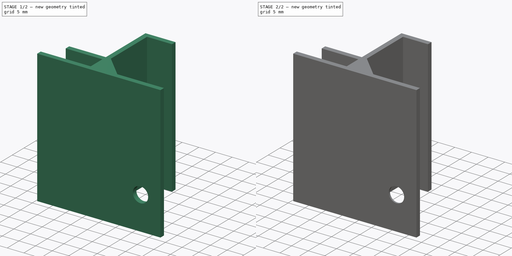
[diagram: build sequence overview — one tinted view per stage of 2, left to right]
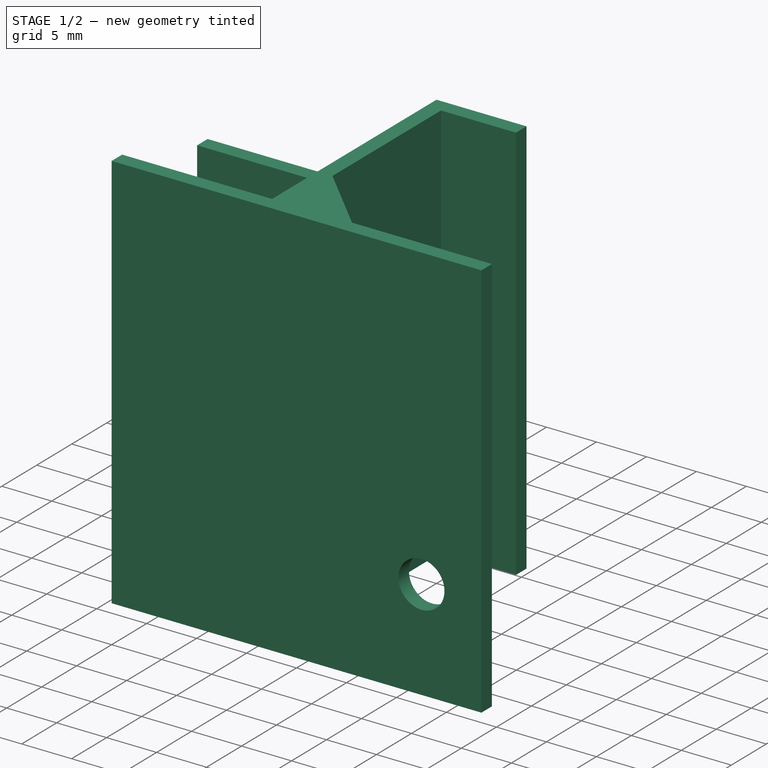
[diagram: stage 1 of 2 — iso view after this stage's code; geometry added in this stage tinted green]
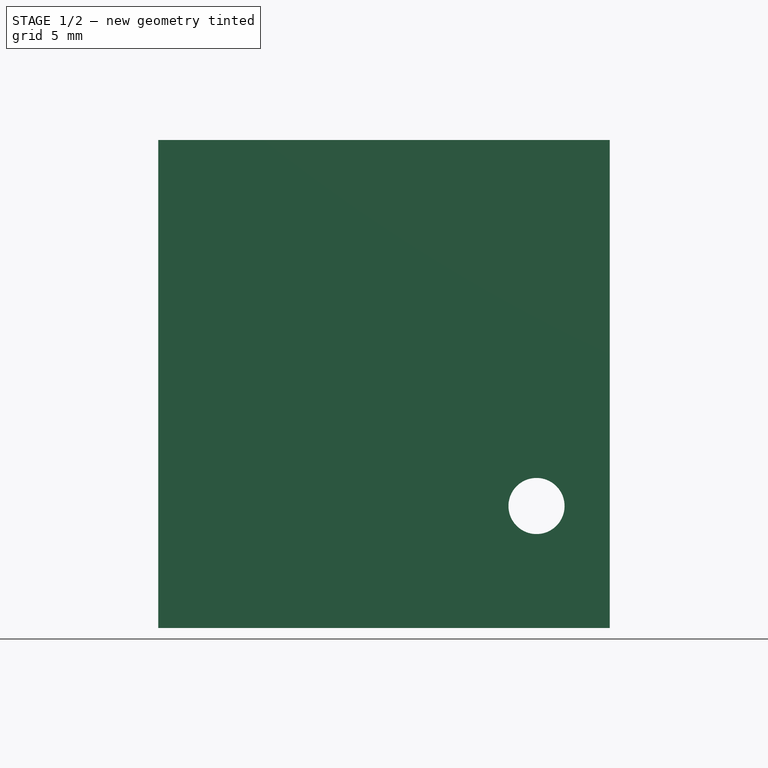
[diagram: stage 1 of 2 — front view after this stage's code; geometry added in this stage tinted green]
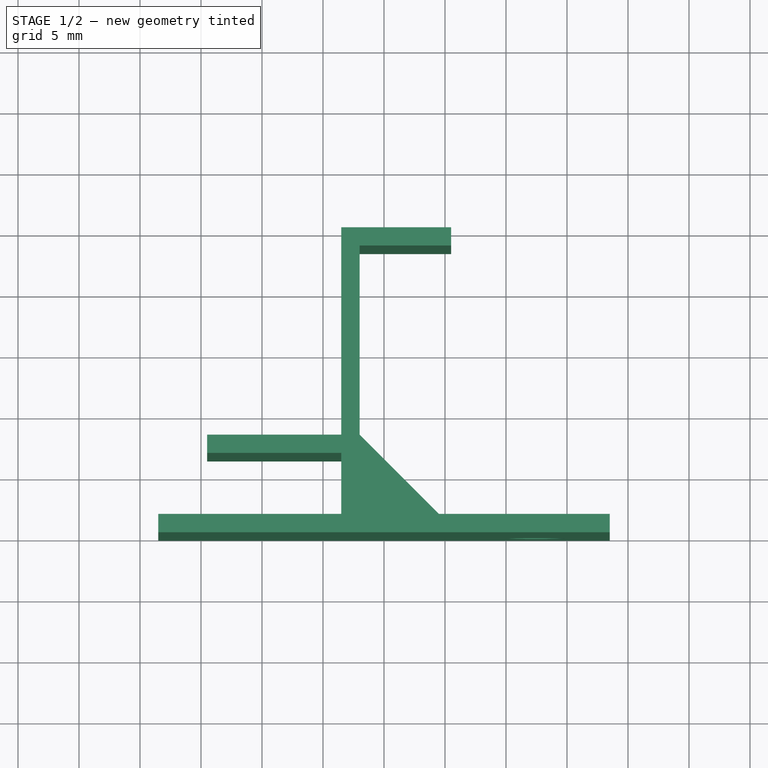
[diagram: stage 1 of 2 — top view after this stage's code; geometry added in this stage tinted green]
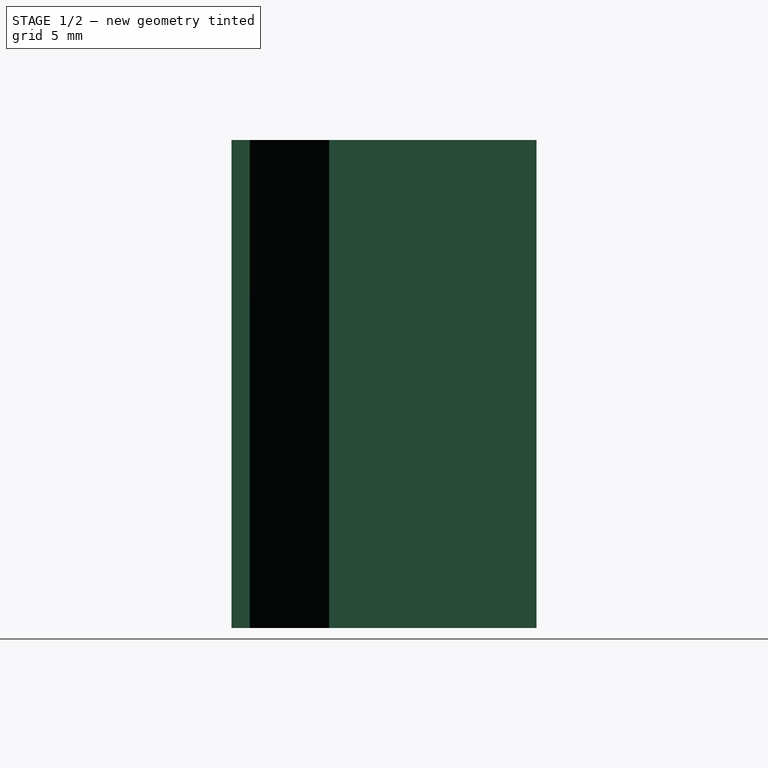
[diagram: stage 1 of 2 — right view after this stage's code; geometry added in this stage tinted green]
FCSTD DOCUMENT  (FreeCAD 0.18.4R)
Label: DoorTopGlassHolder
License: All rights reserved
LicenseURL: http://en.wikipedia.org/wiki/All_rights_reserved
objects: Sketcher::SketchObject×2, PartDesign::Pad×1, PartDesign::Pocket×1, PartDesign::Chamfer×1, PartDesign::Body×1
note: 8 computed .brp shape members not serialized (recipe doc carries the construction recipe); baked Part::Feature solids carry a one-line shape summary decoded from their .brp

FEATURE [Sketcher::SketchObject] Sketch
  MapMode = 5
  Support = -> [XY_Plane]
  sketch-geometry (20):
    g0: LineSegment StartX=-18.5 StartY=0 StartZ=0 EndX=18.5 EndY=0 EndZ=0
    g1: LineSegment StartX=18.5 StartY=0 StartZ=0 EndX=18.5 EndY=1.5 EndZ=0
    g2: LineSegment StartX=18.5 StartY=1.5 StartZ=0 EndX=4.5 EndY=1.5 EndZ=0
    g3: LineSegment StartX=-2 StartY=8 StartZ=0 EndX=-2 EndY=23.5 EndZ=0
    g4: LineSegment StartX=-2 StartY=23.5 StartZ=0 EndX=5.5 EndY=23.5 EndZ=0
    g5: LineSegment StartX=5.5 StartY=23.5 StartZ=0 EndX=5.5 EndY=25 EndZ=0
    g6: LineSegment StartX=5.5 StartY=25 StartZ=0 EndX=-3.5 EndY=25 EndZ=0
    g7: LineSegment StartX=-3.5 StartY=25 StartZ=0 EndX=-3.5 EndY=8 EndZ=0
    g8: LineSegment StartX=-3.5 StartY=8 StartZ=0 EndX=-14.5 EndY=8 EndZ=0
    g9: LineSegment StartX=-14.5 StartY=8 StartZ=0 EndX=-14.5 EndY=6.5 EndZ=0
    g10: LineSegment StartX=-14.5 StartY=6.5 StartZ=0 EndX=-3.5 EndY=6.5 EndZ=0
    g11: LineSegment StartX=-3.5 StartY=6.5 StartZ=0 EndX=-3.5 EndY=1.5 EndZ=0
    g12: LineSegment StartX=-3.5 StartY=1.5 StartZ=0 EndX=-18.5 EndY=1.5 EndZ=0
    g13: LineSegment StartX=-18.5 StartY=1.5 StartZ=0 EndX=-18.5 EndY=0 EndZ=0
    g14: LineSegment [constr] StartX=-3.5 StartY=8 StartZ=0 EndX=-3.5 EndY=6.5 EndZ=0
    g15: LineSegment [constr] StartX=-3.5 StartY=1.5 StartZ=0 EndX=-2 EndY=1.5 EndZ=0
    g16: LineSegment StartX=4.5 StartY=1.5 StartZ=0 EndX=-2 EndY=8 EndZ=0
    g17: LineSegment [constr] StartX=-2 StartY=1.5 StartZ=0 EndX=-2 EndY=8 EndZ=0
    g18: LineSegment [constr] StartX=-2 StartY=1.5 StartZ=0 EndX=4.5 EndY=1.5 EndZ=0
    g19: LineSegment [constr] StartX=-3.5 StartY=8 StartZ=0 EndX=-2 EndY=8 EndZ=0
  constraints (55):
    c: Horizontal(g0)
    c: Coincident(g0,g1)
    c: Vertical(g1)
    c: Coincident(g1,g2)
    c: Horizontal(g2)
    c: Vertical(g3)
    c: Coincident(g3,g4)
    c: Horizontal(g4)
    c: Coincident(g4,g5)
    c: Vertical(g5)
    c: Coincident(g5,g6)
    c: Horizontal(g6)
    c: Coincident(g6,g7)
    c: Vertical(g7)
    c: Coincident(g7,g8)
    c: Horizontal(g8)
    c: Coincident(g8,g9)
    c: Vertical(g9)
    c: Coincident(g9,g10)
    c: Horizontal(g10)
    c: Coincident(g10,g11)
    c: Vertical(g11)
    c: Coincident(g11,g12)
    c: Horizontal(g12)
    c: Coincident(g12,g13)
    c: Coincident(g13,g0)
    c: Vertical(g13)
    c: Coincident(g14,g7)
    c: Vertical(g14)
    c: Coincident(g10,g14)
    c: Coincident(g15,g11)
    c: Horizontal(g15)
    c: Equal(g9,g13)
    c: Equal(g13,g15)
    c: Equal(g15,g5)
    c: DistanceY(g12,g9) = 5
    c: DistanceX(g0,g0) = 37
    c: DistanceY(g5,g5) = 1.5
    c: DistanceY(g0,g6) = 25
    c: DistanceX(g8,g8) = 11
    c: DistanceX(g12,g12) = 15
    c: DistanceX(g6,g6) = 9
    c: Coincident(g3,g16)
    c: Coincident(g17,g15)
    c: Coincident(g17,g3)
    c: Vertical(g17)
    c: Coincident(g18,g17)
    c: Coincident(g18,g2)
    c: Horizontal(g18)
    c: Equal(g18,g17)
    c: Coincident(g19,g7)
    c: Horizontal(g19)
    c: Coincident(g3,g19)
    c: Coincident(g16,g2)
    c: Symmetric(g0,g0,g-1)
FEATURE [PartDesign::Pad] Pad
  Length = 40
  Length2 = 100
  Profile = -> Sketch
  Type = 0
FEATURE [Sketcher::SketchObject] Sketch001
  ExternalGeometry = -> [Sketch]
  MapMode = 5
  Placement = pos=(0,0,0) rot=(1,0,0;1.5708rad)
  Support = -> [XZ_Plane]
  sketch-geometry (1):
    g0: Circle CenterX=12.5 CenterY=10 CenterZ=0 NormalX=0 NormalY=0 NormalZ=1 AngleXU=0 Radius=2.3
  constraints (3):
    c: DistanceY(g-1,g0) = 10
    c: DistanceX(g0,g-3) = 6
    c: Radius(g0) = 2.3
FEATURE [PartDesign::Pocket] Pocket
  BaseFeature = -> Pad
  Length = 5
  Length2 = 100
  Midplane = true
  Profile = -> Sketch001
  Type = 1
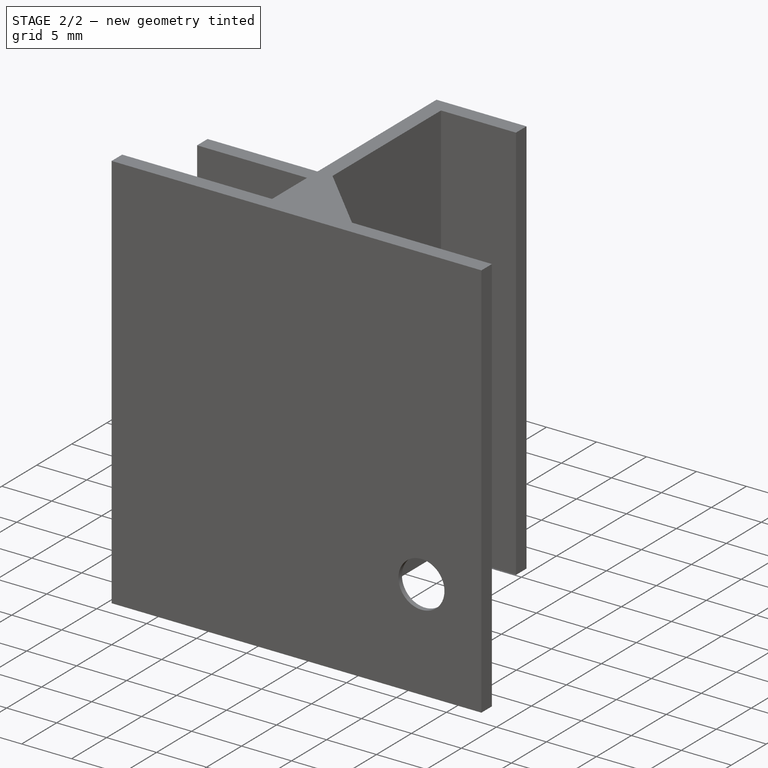
[diagram: stage 2 of 2 — iso view after this stage's code; geometry added in this stage tinted green]
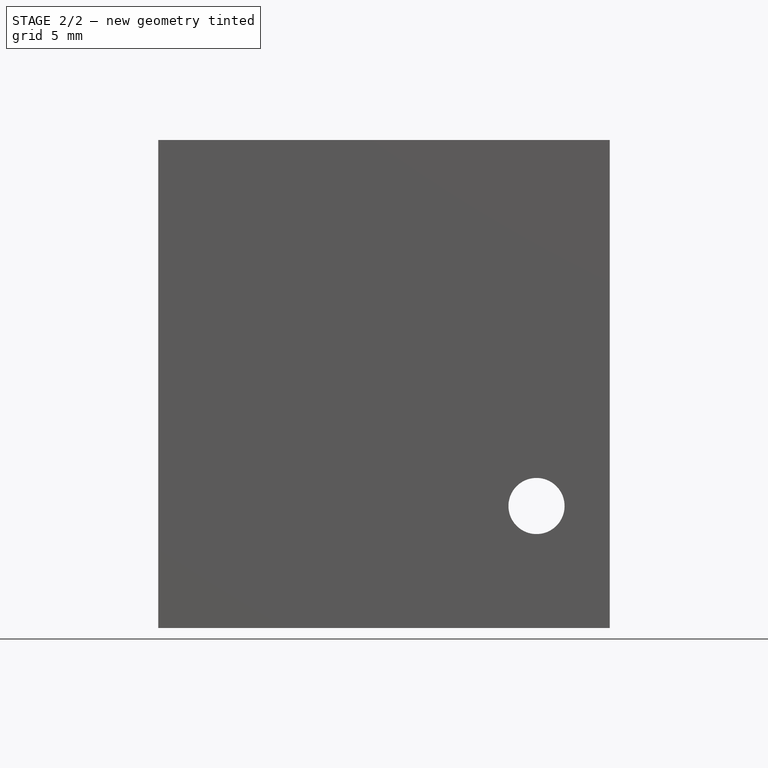
[diagram: stage 2 of 2 — front view after this stage's code; geometry added in this stage tinted green]
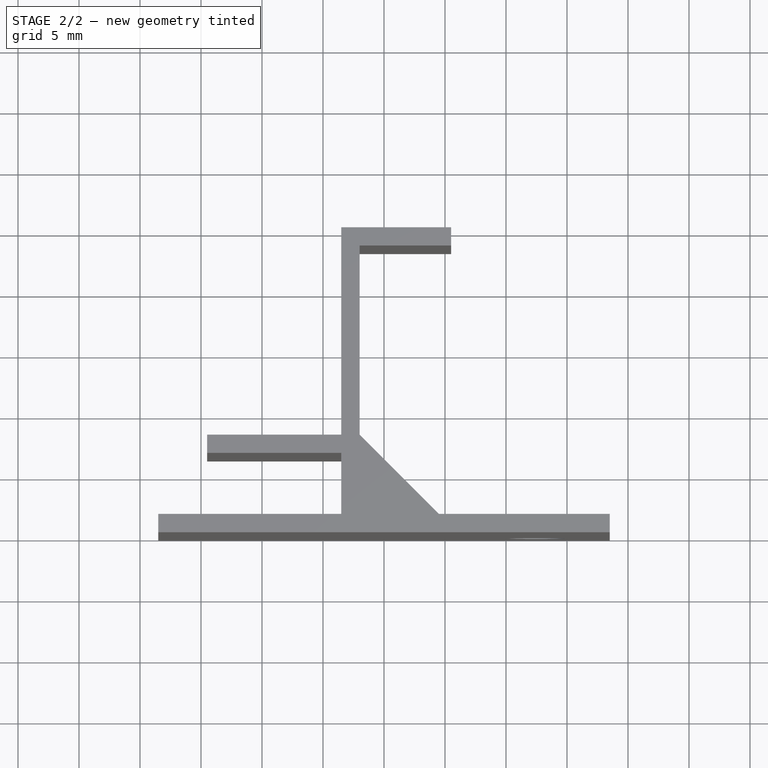
[diagram: stage 2 of 2 — top view after this stage's code; geometry added in this stage tinted green]
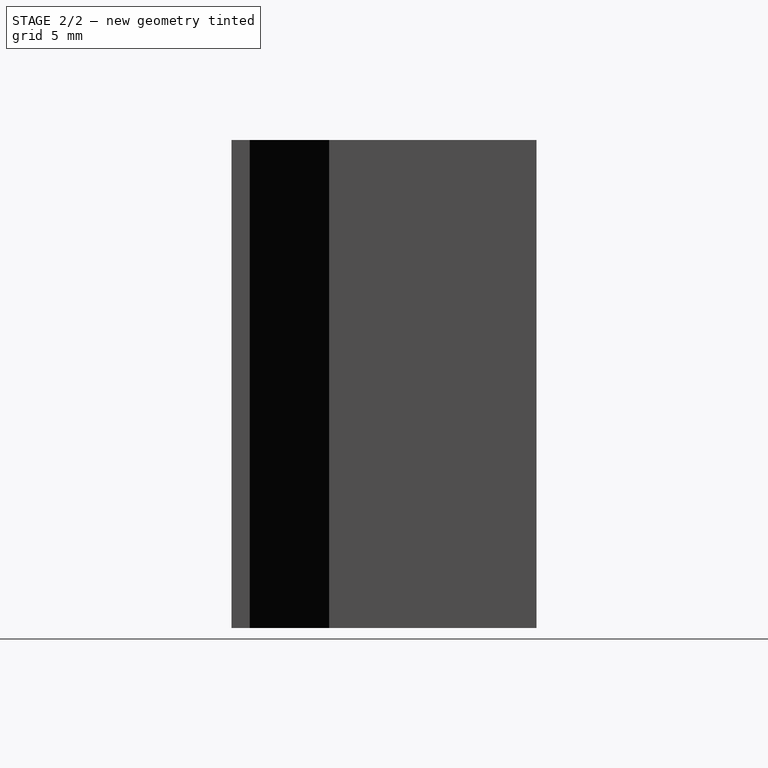
[diagram: stage 2 of 2 — right view after this stage's code; geometry added in this stage tinted green]
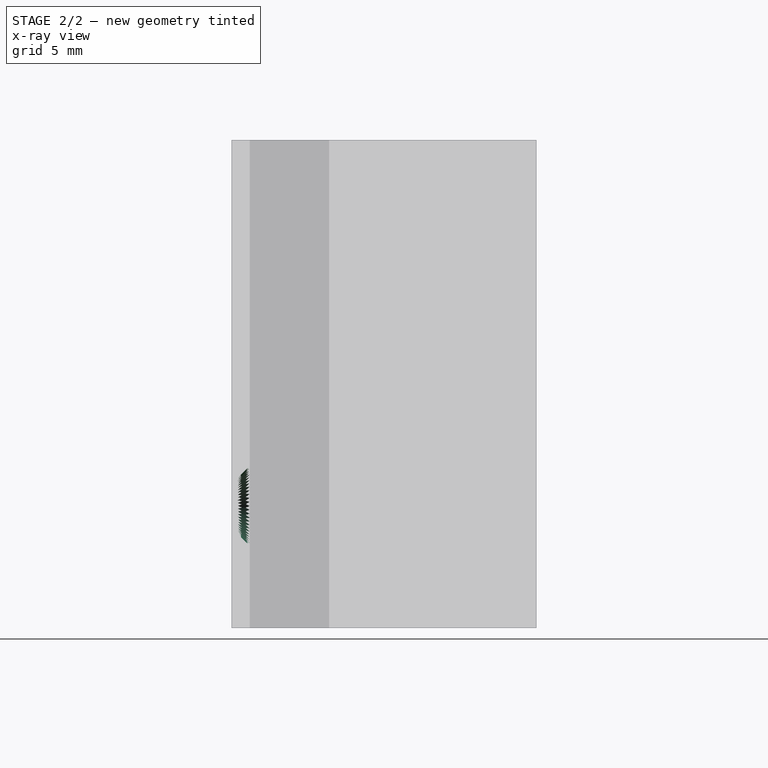
[diagram: stage 2 of 2 — x-ray composite at the right view; earlier geometry ghosted, this stage's added geometry solid]
FEATURE [PartDesign::Chamfer] Chamfer
  Base = -> Pocket [Edge37]
  BaseFeature = -> Pocket
  Size = 1
FEATURE [PartDesign::Body] Body
  Group = -> [Sketch,Pad,Sketch001,Pocket,Chamfer]
  Origin = -> Origin
  Tip = -> Chamfer
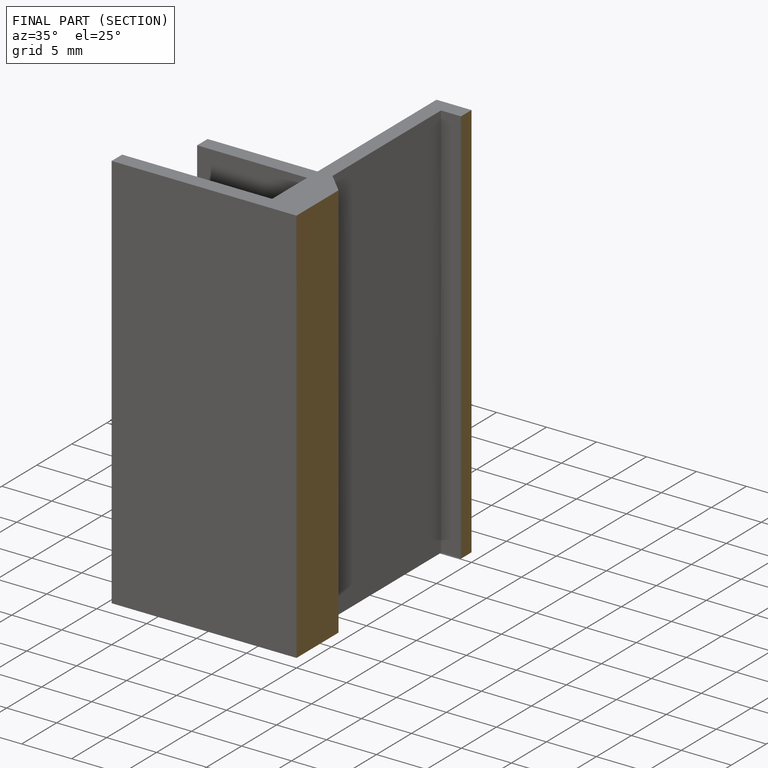
[diagram: finished part — half-section view (interior)]
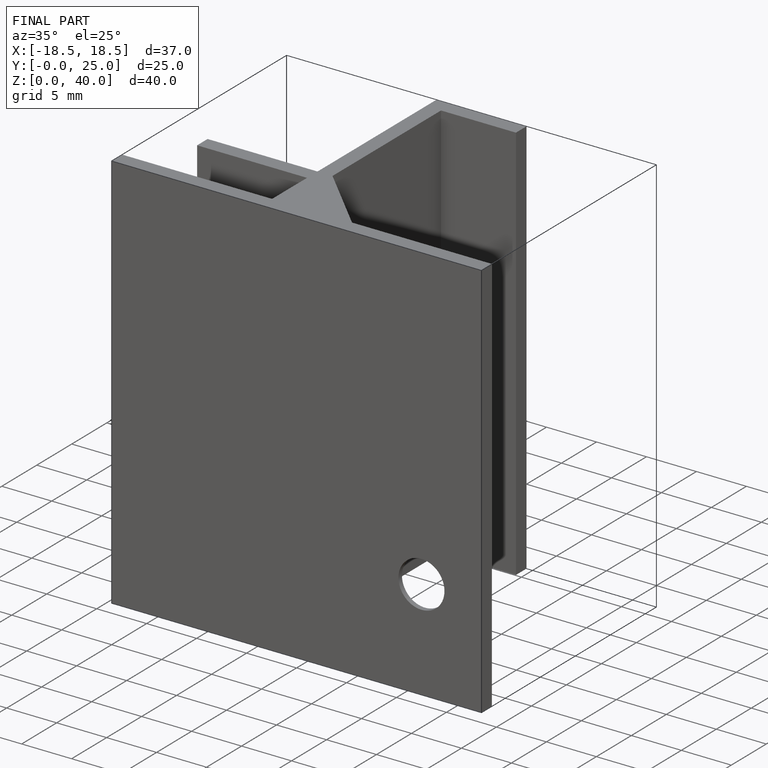
[diagram: finished part — iso view with bounding-box wireframe]
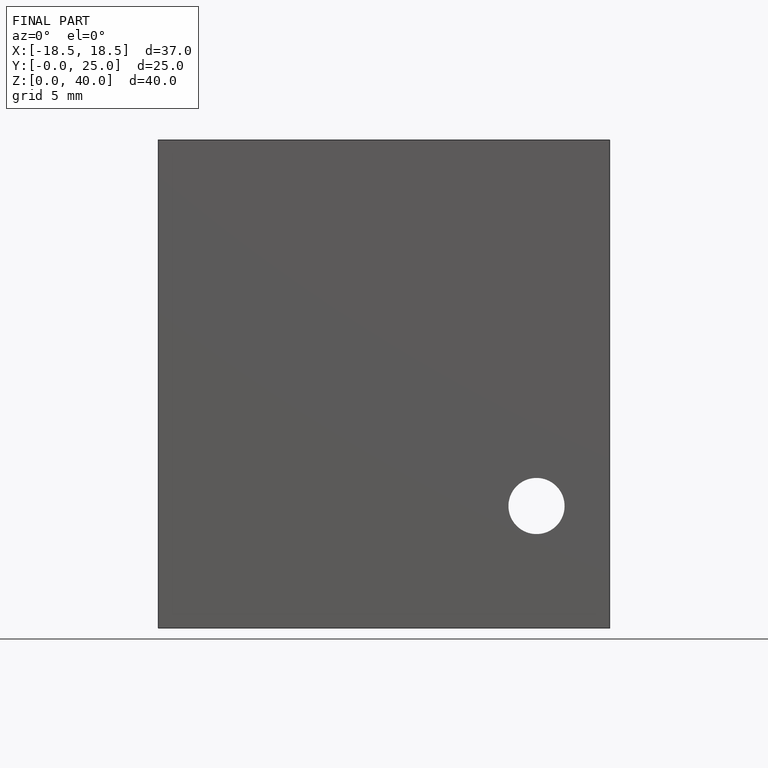
[diagram: finished part — front view with bounding-box wireframe]
